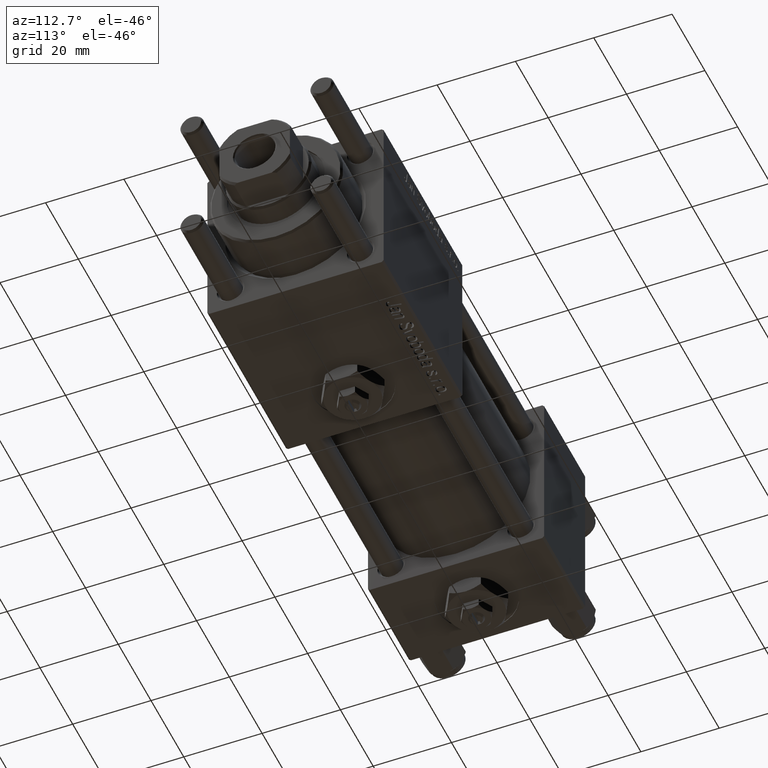
[diagram: clean part render]
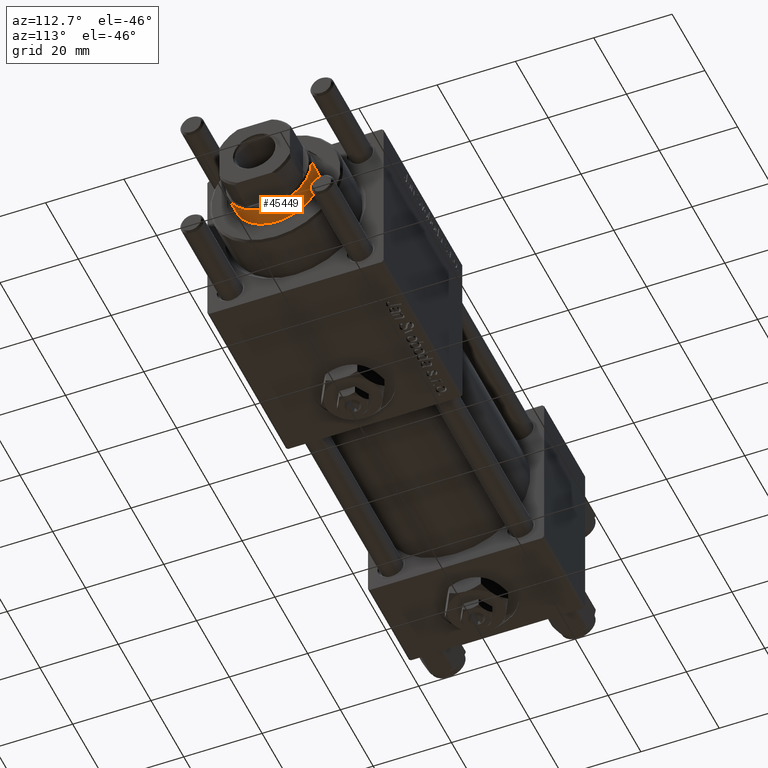
[diagram: same view with one face highlighted and labeled with its STEP entity id]
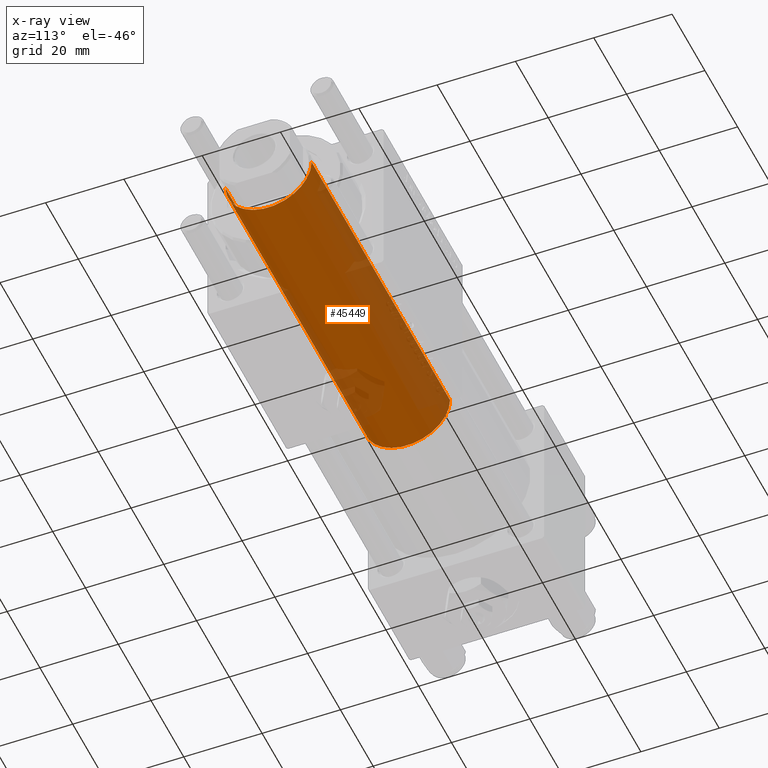
[diagram: x-ray of the same camera — body ghosted, the highlighted face saturated]
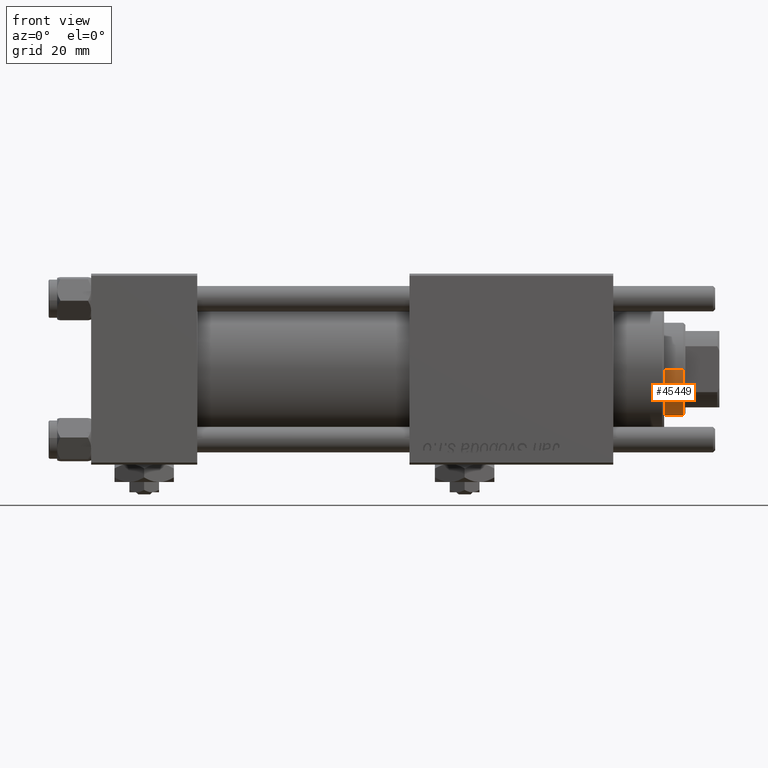
[diagram: same view with one face highlighted and labeled with its STEP entity id]
A machine part, auxiliary view. The second image highlights one B-rep face of the part: STEP entity #45449.
The next image is the same camera in x-ray: the body ghosted, the highlighted face saturated — about 34% of this face is hidden behind the body in this view.
A second angle (front view) of the same face is appended — the face is thin or edge-on in the first view.
In plain terms, the highlighted cylindrical surface (partial cylindrical patch) has radius 11 mm, axis along (-1, 0, 0).
Its self-contained STEP definition (entity closure, byte-faithful):
#3959 = VERTEX_POINT ( 'NONE', #7125 ) ;
#4319 = ORIENTED_EDGE ( 'NONE', *, *, #38862, .T. ) ;
#5445 = DIRECTION ( 'NONE',  ( -0.000000000000000000, -0.000000000000000000, -1.000000000000000000 ) ) ;
#7125 = CARTESIAN_POINT ( 'NONE',  ( -11.00000000000000000, 0.000000000000000000, 114.5000000000000142 ) ) ;
#7163 = VECTOR ( 'NONE', #5445, 1000.000000000000000 ) ;
#8842 = CARTESIAN_POINT ( 'NONE',  ( 11.00000000000000000, 1.347111479062088405E-15, 114.5000000000000142 ) ) ;
#11721 = DIRECTION ( 'NONE',  ( 1.000000000000000000, 0.000000000000000000, 0.000000000000000000 ) ) ;
#12888 = DIRECTION ( 'NONE',  ( 0.000000000000000000, 0.000000000000000000, 1.000000000000000000 ) ) ;
#13249 = EDGE_CURVE ( 'NONE', #15361, #58439, #47943, .T. ) ;
#15361 = VERTEX_POINT ( 'NONE', #8842 ) ;
#16988 = DIRECTION ( 'NONE',  ( 0.000000000000000000, 0.000000000000000000, -1.000000000000000000 ) ) ;
#19269 = CIRCLE ( 'NONE', #30656, 11.00000000000000000 ) ;
#19475 = CIRCLE ( 'NONE', #31844, 11.00000000000000000 ) ;
#22701 = LINE ( 'NONE', #45620, #7163 ) ;
#24473 = VERTEX_POINT ( 'NONE', #31475 ) ;
#26486 = DIRECTION ( 'NONE',  ( 1.000000000000000000, 0.000000000000000000, 0.000000000000000000 ) ) ;
#27851 = EDGE_CURVE ( 'NONE', #3959, #15361, #19269, .T. ) ;
#29488 = CARTESIAN_POINT ( 'NONE',  ( 11.00000000000000000, 1.347111479062088405E-15, 115.0000000000000000 ) ) ;
#30656 = AXIS2_PLACEMENT_3D ( 'NONE', #44645, #16988, #26486 ) ;
#31475 = CARTESIAN_POINT ( 'NONE',  ( -11.00000000000000000, 0.000000000000000000, 30.00000000000000000 ) ) ;
#31844 = AXIS2_PLACEMENT_3D ( 'NONE', #53642, #12888, #11721 ) ;
#33030 = DIRECTION ( 'NONE',  ( -0.000000000000000000, -0.000000000000000000, -1.000000000000000000 ) ) ;
#33948 = DIRECTION ( 'NONE',  ( -0.000000000000000000, -0.000000000000000000, -1.000000000000000000 ) ) ;
#37785 = FACE_OUTER_BOUND ( 'NONE', #50928, .T. ) ;
#38862 = EDGE_CURVE ( 'NONE', #58439, #24473, #19475, .T. ) ;
#40796 = VECTOR ( 'NONE', #33948, 1000.000000000000000 ) ;
#41669 = CARTESIAN_POINT ( 'NONE',  ( 0.000000000000000000, 0.000000000000000000, 115.0000000000000000 ) ) ;
#43348 = AXIS2_PLACEMENT_3D ( 'NONE', #41669, #33030, #51478 ) ;
#44085 = ORIENTED_EDGE ( 'NONE', *, *, #27851, .T. ) ;
#44645 = CARTESIAN_POINT ( 'NONE',  ( 0.000000000000000000, 0.000000000000000000, 114.5000000000000142 ) ) ;
#45449 = ADVANCED_FACE ( 'NONE', ( #37785 ), #50608, .T. ) ;
#45620 = CARTESIAN_POINT ( 'NONE',  ( -11.00000000000000000, 0.000000000000000000, 115.0000000000000000 ) ) ;
#47943 = LINE ( 'NONE', #29488, #40796 ) ;
#48000 = EDGE_CURVE ( 'NONE', #3959, #24473, #22701, .T. ) ;
#49522 = ORIENTED_EDGE ( 'NONE', *, *, #48000, .F. ) ;
#50608 = CYLINDRICAL_SURFACE ( 'NONE', #43348, 11.00000000000000000 ) ;
#50928 = EDGE_LOOP ( 'NONE', ( #44085, #55531, #4319, #49522 ) ) ;
#51478 = DIRECTION ( 'NONE',  ( -1.000000000000000000, 0.000000000000000000, 0.000000000000000000 ) ) ;
#53642 = CARTESIAN_POINT ( 'NONE',  ( 0.000000000000000000, 0.000000000000000000, 30.00000000000000000 ) ) ;
#53830 = CARTESIAN_POINT ( 'NONE',  ( 11.00000000000000000, 1.347111479062088405E-15, 30.00000000000000000 ) ) ;
#55531 = ORIENTED_EDGE ( 'NONE', *, *, #13249, .T. ) ;
#58439 = VERTEX_POINT ( 'NONE', #53830 ) ;